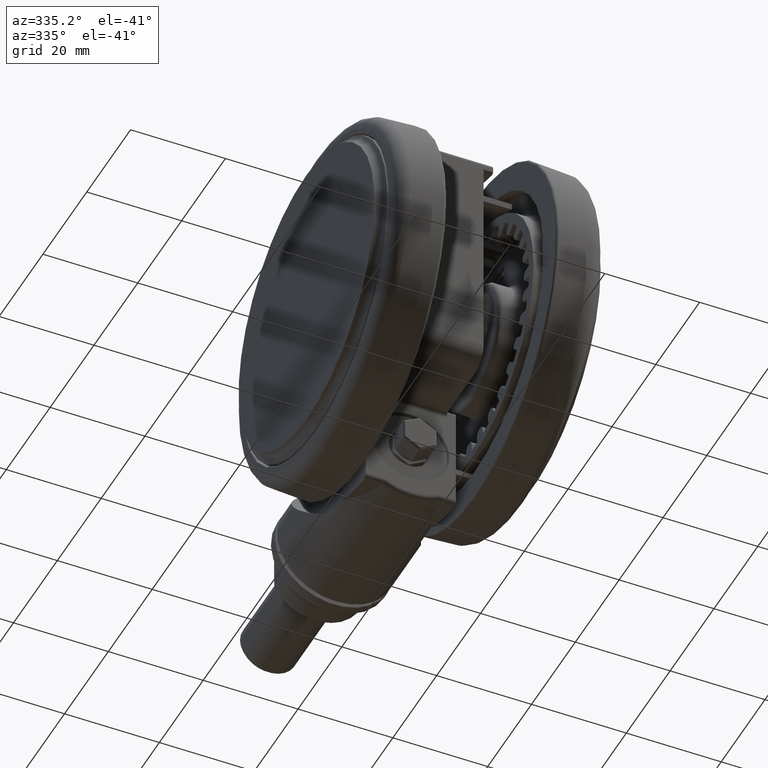
[diagram: clean part render]
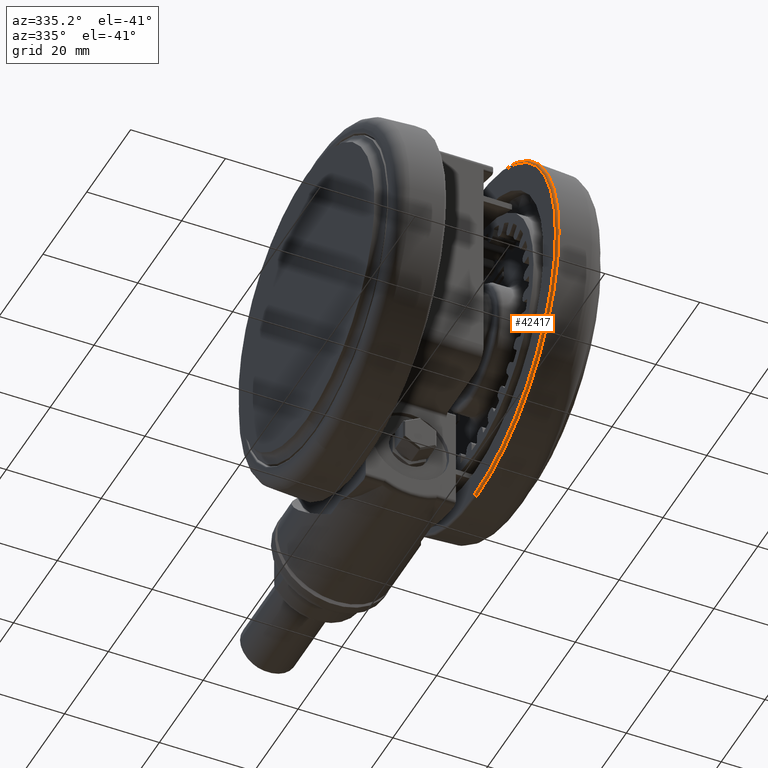
[diagram: same view with one face highlighted and labeled with its STEP entity id]
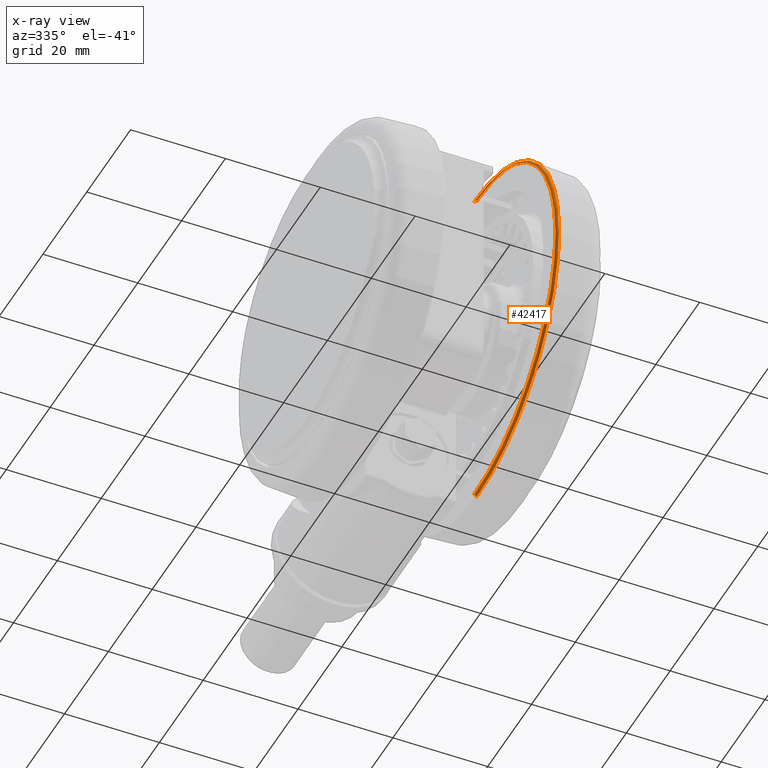
[diagram: x-ray of the same camera — body ghosted, the highlighted face saturated]
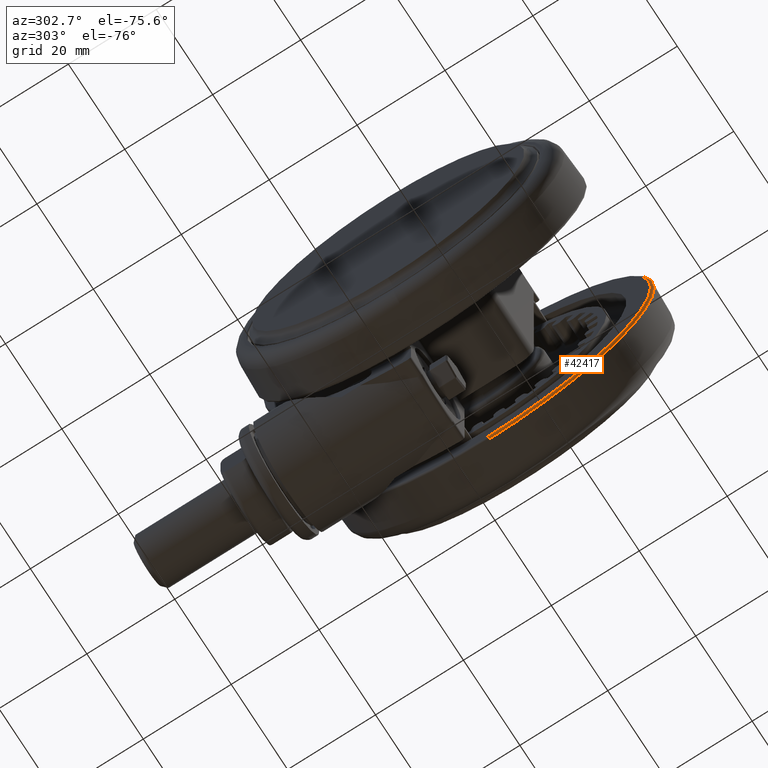
[diagram: same view with one face highlighted and labeled with its STEP entity id]
A machine part, auxiliary view. The second image highlights one B-rep face of the part: STEP entity #42417.
The next image is the same camera in x-ray: the body ghosted, the highlighted face saturated — about 1% of this face is hidden behind the body in this view.
A second angle (auxiliary view) of the same face is appended — the face is thin or edge-on in the first view.
In plain terms, the highlighted toroidal blend (fillet) surface has major radius 37.0007 mm and minor (blend) radius 0.5 mm.
Its self-contained STEP definition (entity closure, byte-faithful):
#1162 = VERTEX_POINT ( 'NONE', #56375 ) ;
#5875 = DIRECTION ( 'NONE',  ( 0.0000000000000000000, 0.0000000000000000000, 1.000000000000000000 ) ) ;
#7098 = ORIENTED_EDGE ( 'NONE', *, *, #45271, .T. ) ;
#7430 = DIRECTION ( 'NONE',  ( 0.0000000000000000000, 0.0000000000000000000, 1.000000000000000000 ) ) ;
#10375 = DIRECTION ( 'NONE',  ( -3.275157922644210200E-015, 1.000000000000000000, 0.0000000000000000000 ) ) ;
#11160 = DIRECTION ( 'NONE',  ( 1.000000000000000000, 3.275157922644210200E-015, -0.0000000000000000000 ) ) ;
#12690 = VERTEX_POINT ( 'NONE', #45462 ) ;
#14628 = AXIS2_PLACEMENT_3D ( 'NONE', #51192, #24421, #55724 ) ;
#16616 = CIRCLE ( 'NONE', #57029, 0.5000000000000004400 ) ;
#23267 = ORIENTED_EDGE ( 'NONE', *, *, #28185, .F. ) ;
#24421 = DIRECTION ( 'NONE',  ( 0.0000000000000000000, 0.0000000000000000000, 1.000000000000000000 ) ) ;
#25199 = CIRCLE ( 'NONE', #14628, 37.00068523262270800 ) ;
#25333 = FACE_OUTER_BOUND ( 'NONE', #48682, .T. ) ;
#25544 = DIRECTION ( 'NONE',  ( -1.000000000000000000, -3.152693242729475100E-015, 0.0000000000000000000 ) ) ;
#26876 = AXIS2_PLACEMENT_3D ( 'NONE', #52353, #25544, #56871 ) ;
#28185 = EDGE_CURVE ( 'NONE', #51014, #1162, #33167, .T. ) ;
#29959 = AXIS2_PLACEMENT_3D ( 'NONE', #37218, #5875, #10375 ) ;
#31203 = EDGE_CURVE ( 'NONE', #54978, #51014, #40687, .T. ) ;
#33167 = CIRCLE ( 'NONE', #41365, 37.50000000000000000 ) ;
#33808 = CARTESIAN_POINT ( 'NONE',  ( 1.228184220991578900E-013, -37.50000000000001400, -11.77383202187863600 ) ) ;
#34233 = CARTESIAN_POINT ( 'NONE',  ( 0.0000000000000000000, -1.387778780781445700E-014, -11.77383202187863600 ) ) ;
#35429 = CARTESIAN_POINT ( 'NONE',  ( 1.174389034558025700E-013, -37.00068523262271500, -12.30000000000010700 ) ) ;
#35826 = TOROIDAL_SURFACE ( 'NONE', #29959, 37.00068523262270800, 0.5000000000000036600 ) ;
#37218 = CARTESIAN_POINT ( 'NONE',  ( 0.0000000000000000000, -1.387778780781445700E-014, -11.80000000000010600 ) ) ;
#37999 = CARTESIAN_POINT ( 'NONE',  ( -1.211830873828888800E-013, 37.00068523262269300, -11.80000000000010600 ) ) ;
#38776 = DIRECTION ( 'NONE',  ( -3.275157922644210600E-015, 1.000000000000000000, 0.0000000000000000000 ) ) ;
#40687 = CIRCLE ( 'NONE', #26876, 0.5000000000000004400 ) ;
#41365 = AXIS2_PLACEMENT_3D ( 'NONE', #34233, #7430, #38776 ) ;
#42417 = ADVANCED_FACE ( 'NONE', ( #25333 ), #35826, .T. ) ;
#42505 = DIRECTION ( 'NONE',  ( -3.275157922644218100E-015, 1.000000000000000000, 0.0000000000000000000 ) ) ;
#45271 = EDGE_CURVE ( 'NONE', #12690, #1162, #16616, .T. ) ;
#45462 = CARTESIAN_POINT ( 'NONE',  ( -1.211830873828888800E-013, 37.00068523262269300, -12.30000000000010700 ) ) ;
#48682 = EDGE_LOOP ( 'NONE', ( #55716, #57041, #7098, #23267 ) ) ;
#51014 = VERTEX_POINT ( 'NONE', #33808 ) ;
#51192 = CARTESIAN_POINT ( 'NONE',  ( 0.0000000000000000000, -1.387778780781445700E-014, -12.30000000000010700 ) ) ;
#52353 = CARTESIAN_POINT ( 'NONE',  ( 1.166518103092498600E-013, -37.00068523262271500, -11.80000000000010600 ) ) ;
#54038 = EDGE_CURVE ( 'NONE', #54978, #12690, #25199, .T. ) ;
#54978 = VERTEX_POINT ( 'NONE', #35429 ) ;
#55716 = ORIENTED_EDGE ( 'NONE', *, *, #31203, .F. ) ;
#55724 = DIRECTION ( 'NONE',  ( -3.275157922644209800E-015, 1.000000000000000000, 0.0000000000000000000 ) ) ;
#56375 = CARTESIAN_POINT ( 'NONE',  ( -1.274108475959604500E-013, 37.49999999999998600, -11.77383202187863600 ) ) ;
#56871 = DIRECTION ( 'NONE',  ( 3.152693242729520000E-015, -1.000000000000000000, 0.0000000000000000000 ) ) ;
#57029 = AXIS2_PLACEMENT_3D ( 'NONE', #37999, #11160, #42505 ) ;
#57041 = ORIENTED_EDGE ( 'NONE', *, *, #54038, .T. ) ;